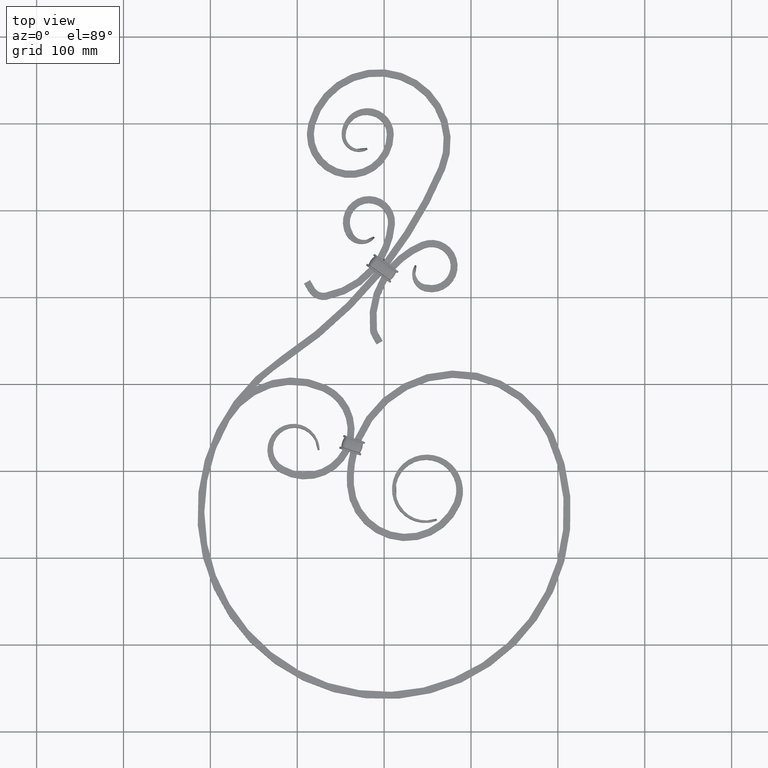
[diagram: clean part render]
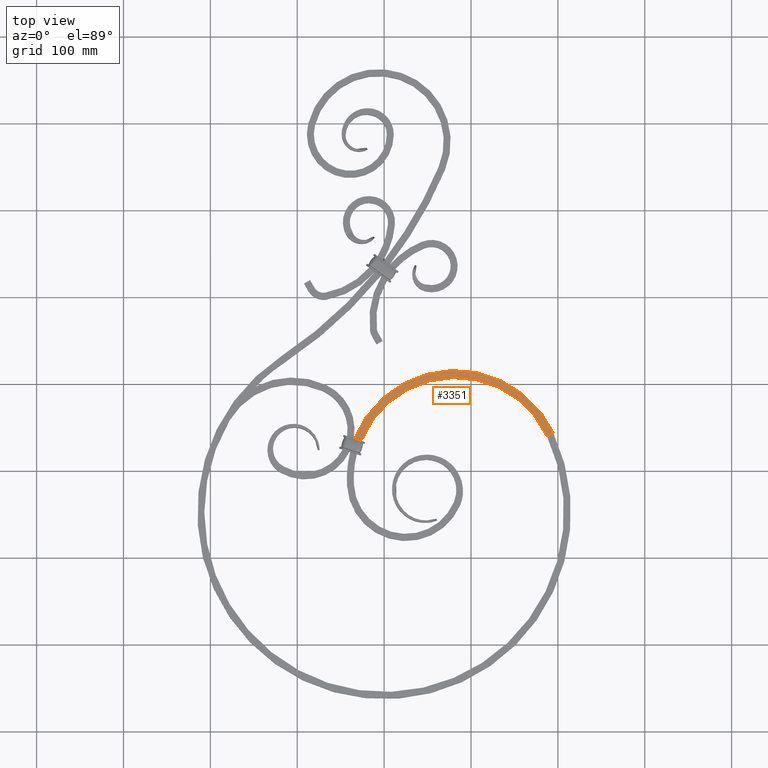
[diagram: same view with one face highlighted and labeled with its STEP entity id]
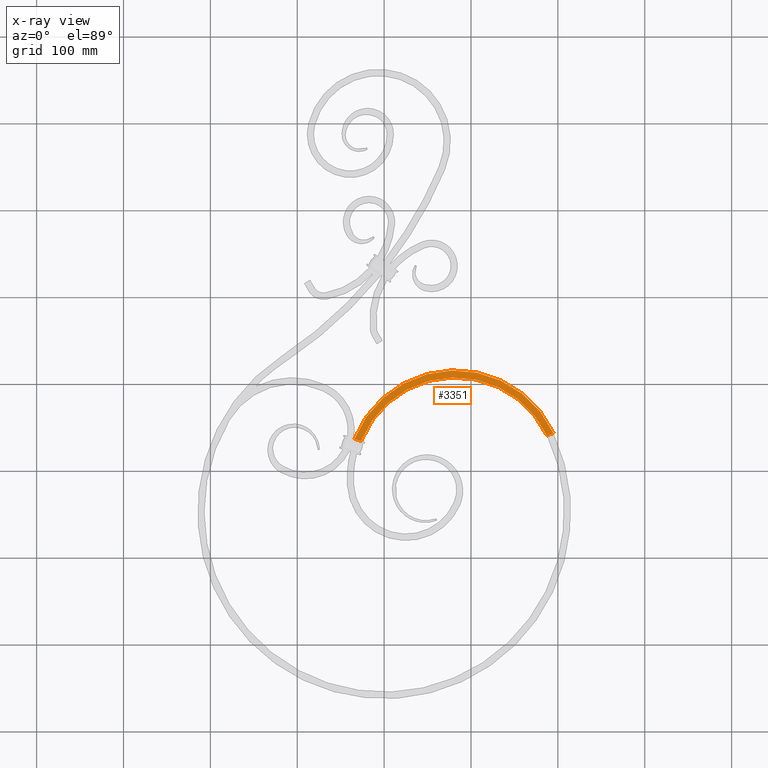
[diagram: x-ray of the same camera — body ghosted, the highlighted face saturated]
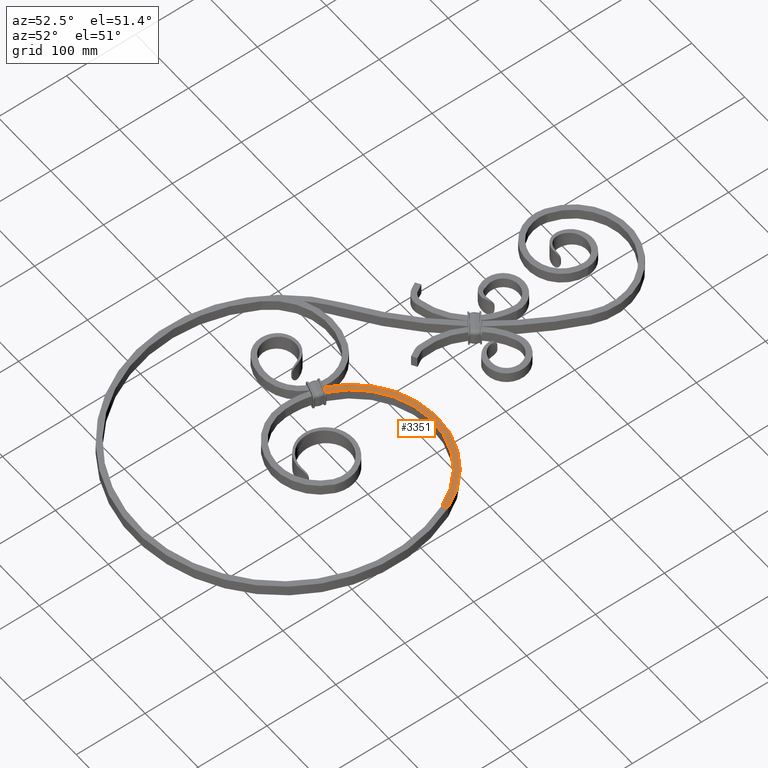
[diagram: same view with one face highlighted and labeled with its STEP entity id]
A machine part, top view. The second image highlights one B-rep face of the part: STEP entity #3351.
The next image is the same camera in x-ray: the body ghosted, the highlighted face saturated — about 0% of this face is hidden behind the body in this view.
A second angle (auxiliary view) of the same face is appended — the face is thin or edge-on in the first view.
In plain terms, the highlighted planar face has unit normal (0, 0, 1).
Its self-contained STEP definition (entity closure, byte-faithful):
#676 = CARTESIAN_POINT ( 'NONE',  ( -41.19751237565706958, -61.03284535278285006, 8.000000000000000000 ) ) ;
#712 = AXIS2_PLACEMENT_3D ( 'NONE', #22354, #4162, #20414 ) ;
#1367 = PLANE ( 'NONE',  #16490 ) ;
#1563 = CIRCLE ( 'NONE', #712, 116.7460279784040011 ) ;
#1583 = CARTESIAN_POINT ( 'NONE',  ( -26.99767121043783646, -65.24661614803413556, 8.000000000000000000 ) ) ;
#1640 = CARTESIAN_POINT ( 'NONE',  ( -26.43284925621962245, -65.34881201895426273, 8.000000000000000000 ) ) ;
#2643 = EDGE_CURVE ( 'NONE', #21128, #19708, #10138, .T. ) ;
#3095 = CARTESIAN_POINT ( 'NONE',  ( -34.23663264083697300, -63.31571193256374386, 8.000000000000000000 ) ) ;
#3351 = ADVANCED_FACE ( 'NONE', ( #11554 ), #1367, .T. ) ;
#4075 = CARTESIAN_POINT ( 'NONE',  ( 194.7326596457314167, -56.37266454405857985, 8.000000000000000000 ) ) ;
#4162 = DIRECTION ( 'NONE',  ( 0.000000000000000000, 0.000000000000000000, 1.000000000000000000 ) ) ;
#4601 = EDGE_LOOP ( 'NONE', ( #10606, #21952, #23648, #15836, #22412, #13955 ) ) ;
#5958 = DIRECTION ( 'NONE',  ( 0.9502048491272322428, -0.3116259692244754964, -0.000000000000000000 ) ) ;
#6805 = DIRECTION ( 'NONE',  ( 1.000000000000000000, 0.000000000000000000, -0.000000000000000000 ) ) ;
#7242 = CARTESIAN_POINT ( 'NONE',  ( -26.58144970075165148, -65.30007751965443674, 8.000000000000000000 ) ) ;
#7773 = CARTESIAN_POINT ( 'NONE',  ( -26.58144970075165148, -65.30007751965443674, 8.000000000000000000 ) ) ;
#8113 = B_SPLINE_CURVE_WITH_KNOTS ( 'NONE', 3,
 ( #22565, #17546, #22000, #19901, #1583, #14697, #12521, #7242 ),
 .UNSPECIFIED., .F., .F.,
 ( 4, 2, 2, 4 ),
 ( -6.324555320400997361E-06, 0.0006093436666999880059, 0.0009171777777101825261, 0.001225011888720377046 ),
 .UNSPECIFIED. ) ;
#8371 = EDGE_CURVE ( 'NONE', #10225, #21128, #20341, .T. ) ;
#8431 = VECTOR ( 'NONE', #21321, 1000.000000000000000 ) ;
#9315 = VERTEX_POINT ( 'NONE', #7773 ) ;
#10138 = CIRCLE ( 'NONE', #11253, 124.7460279784039869 ) ;
#10225 = VERTEX_POINT ( 'NONE', #17036 ) ;
#10302 = VECTOR ( 'NONE', #11265, 1000.000000000000114 ) ;
#10606 = ORIENTED_EDGE ( 'NONE', *, *, #22767, .T. ) ;
#11253 = AXIS2_PLACEMENT_3D ( 'NONE', #23707, #12918, #21991 ) ;
#11265 = DIRECTION ( 'NONE',  ( 0.9057333006778210960, 0.4238480718880998643, 0.000000000000000000 ) ) ;
#11554 = FACE_OUTER_BOUND ( 'NONE', #4601, .T. ) ;
#12088 = DIRECTION ( 'NONE',  ( 0.000000000000000000, 0.000000000000000000, 1.000000000000000000 ) ) ;
#12521 = CARTESIAN_POINT ( 'NONE',  ( -26.68197037853868636, -65.26711109807570210, 8.000000000000000000 ) ) ;
#12918 = DIRECTION ( 'NONE',  ( 0.000000000000000000, 0.000000000000000000, 1.000000000000000000 ) ) ;
#13192 = VERTEX_POINT ( 'NONE', #1640 ) ;
#13955 = ORIENTED_EDGE ( 'NONE', *, *, #2643, .T. ) ;
#14164 = LINE ( 'NONE', #17306, #8431 ) ;
#14546 = EDGE_CURVE ( 'NONE', #16705, #9315, #8113, .T. ) ;
#14697 = CARTESIAN_POINT ( 'NONE',  ( -26.78856226610386315, -65.25195946587923856, 8.000000000000001776 ) ) ;
#15836 = ORIENTED_EDGE ( 'NONE', *, *, #17497, .F. ) ;
#16490 = AXIS2_PLACEMENT_3D ( 'NONE', #21471, #12088, #6805 ) ;
#16705 = VERTEX_POINT ( 'NONE', #20387 ) ;
#17036 = CARTESIAN_POINT ( 'NONE',  ( 187.4867932403088560, -59.76344911916336855, 8.000000000000000000 ) ) ;
#17306 = CARTESIAN_POINT ( 'NONE',  ( 165.0590239828555070, -128.1498392411872942, 8.000000000000000000 ) ) ;
#17497 = EDGE_CURVE ( 'NONE', #10225, #13192, #1563, .T. ) ;
#17546 = CARTESIAN_POINT ( 'NONE',  ( -27.60348078129247895, -65.36640422735503364, 8.000000000000000000 ) ) ;
#19708 = VERTEX_POINT ( 'NONE', #3095 ) ;
#19901 = CARTESIAN_POINT ( 'NONE',  ( -27.10017605009057817, -65.25594179346673229, 8.000000000000001776 ) ) ;
#20253 = CARTESIAN_POINT ( 'NONE',  ( 187.4867932403088560, -59.76344911916328329, 8.000000000000000000 ) ) ;
#20341 = LINE ( 'NONE', #20253, #10302 ) ;
#20387 = CARTESIAN_POINT ( 'NONE',  ( -27.79962400296311031, -65.42677151884794284, 8.000000000000000000 ) ) ;
#20414 = DIRECTION ( 'NONE',  ( 0.9057333006778208739, 0.4238480718881001419, 0.000000000000000000 ) ) ;
#20540 = EDGE_CURVE ( 'NONE', #9315, #13192, #14164, .T. ) ;
#21128 = VERTEX_POINT ( 'NONE', #4075 ) ;
#21321 = DIRECTION ( 'NONE',  ( 0.9502048491272323538, -0.3116259692244752744, 0.000000000000000000 ) ) ;
#21471 = CARTESIAN_POINT ( 'NONE',  ( 187.4867932403088275, -59.76344911916326197, 8.000000000000000000 ) ) ;
#21952 = ORIENTED_EDGE ( 'NONE', *, *, #14546, .T. ) ;
#21991 = DIRECTION ( 'NONE',  ( 0.9057333006778208739, 0.4238480718881001974, 0.000000000000000000 ) ) ;
#22000 = CARTESIAN_POINT ( 'NONE',  ( -27.40410666160548914, -65.30489674805752998, 7.999999999999996447 ) ) ;
#22354 = CARTESIAN_POINT ( 'NONE',  ( 81.74602797840375956, -109.2460279784039869, 8.000000000000000000 ) ) ;
#22412 = ORIENTED_EDGE ( 'NONE', *, *, #8371, .T. ) ;
#22565 = CARTESIAN_POINT ( 'NONE',  ( -27.79962400296311031, -65.42677151884794284, 8.000000000000000000 ) ) ;
#22767 = EDGE_CURVE ( 'NONE', #19708, #16705, #23599, .T. ) ;
#23283 = VECTOR ( 'NONE', #5958, 1000.000000000000227 ) ;
#23599 = LINE ( 'NONE', #676, #23283 ) ;
#23648 = ORIENTED_EDGE ( 'NONE', *, *, #20540, .T. ) ;
#23707 = CARTESIAN_POINT ( 'NONE',  ( 81.74602797840375956, -109.2460279784039869, 8.000000000000000000 ) ) ;